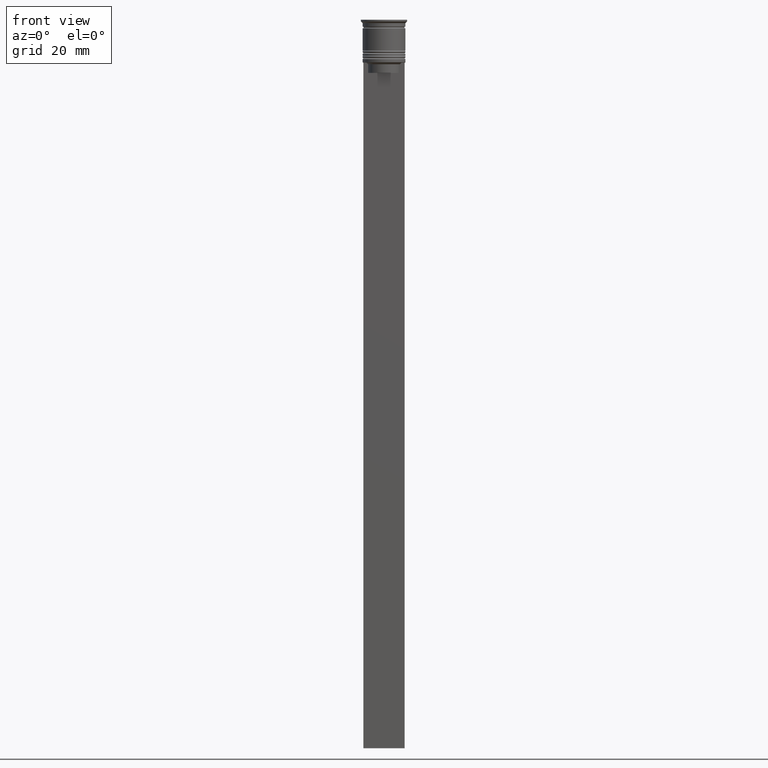
[diagram: clean part render]
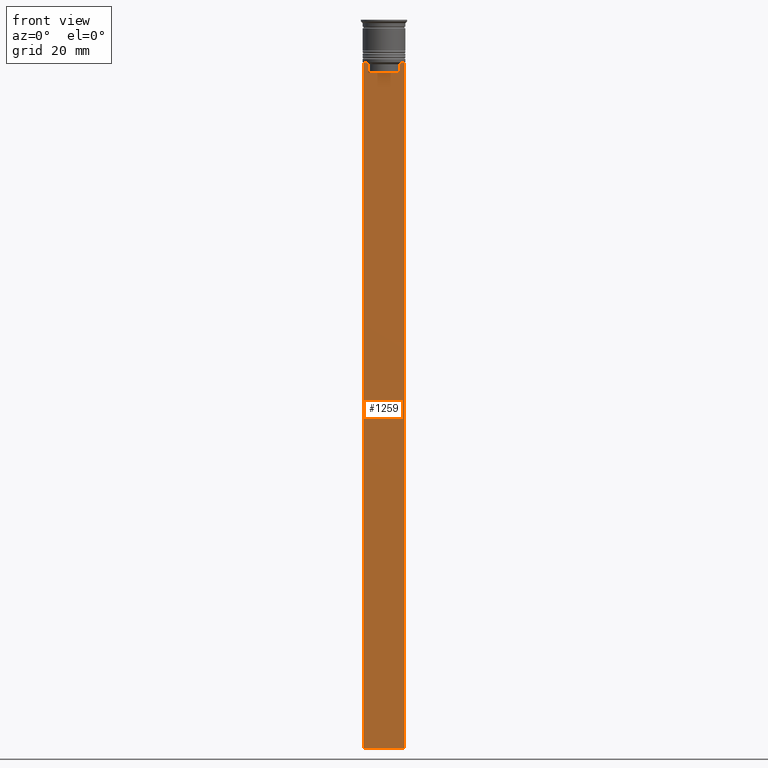
[diagram: same view with one face highlighted and labeled with its STEP entity id]
A machine part, front view. The second image highlights one B-rep face of the part: STEP entity #1259.
In plain terms, the highlighted planar face has unit normal (0, -1, -0).
Its self-contained STEP definition (entity closure, byte-faithful):
#4 = EDGE_CURVE ( 'NONE', #890, #1723, #197, .T. ) ;
#5 = CARTESIAN_POINT ( 'NONE',  ( 6.000000000000016875, -0.5000000000000017764, -0.4584054212077061097 ) ) ;
#49 = CARTESIAN_POINT ( 'NONE',  ( 4.790630799407577634, -0.5000000000000017764, -12.83338098686238915 ) ) ;
#87 = ORIENTED_EDGE ( 'NONE', *, *, #493, .F. ) ;
#94 = VECTOR ( 'NONE', #804, 1000.000000000000000 ) ;
#126 = LINE ( 'NONE', #863, #904 ) ;
#152 = PLANE ( 'NONE',  #953 ) ;
#197 = LINE ( 'NONE', #2187, #1772 ) ;
#201 = CARTESIAN_POINT ( 'NONE',  ( -4.623040125285526436, -0.5000000000000022204, -15.50000000000000000 ) ) ;
#205 = VERTEX_POINT ( 'NONE', #1544 ) ;
#208 = CARTESIAN_POINT ( 'NONE',  ( -4.958169823806760412, -0.5000000000000017764, -12.66670956677067927 ) ) ;
#282 = VERTEX_POINT ( 'NONE', #634 ) ;
#313 = ORIENTED_EDGE ( 'NONE', *, *, #390, .F. ) ;
#322 = CARTESIAN_POINT ( 'NONE',  ( 4.623040125285526436, -0.5000000000000017764, 0.000000000000000000 ) ) ;
#341 = DIRECTION ( 'NONE',  ( 0.000000000000000000, -1.000000000000000000, -0.000000000000000000 ) ) ;
#352 = DIRECTION ( 'NONE',  ( 0.000000000000000000, 0.000000000000000000, -1.000000000000000000 ) ) ;
#355 = EDGE_CURVE ( 'NONE', #890, #282, #1253, .T. ) ;
#366 = VECTOR ( 'NONE', #2288, 1000.000000000000000 ) ;
#376 = DIRECTION ( 'NONE',  ( 0.000000000000000000, 0.000000000000000000, -1.000000000000000000 ) ) ;
#384 = VECTOR ( 'NONE', #352, 1000.000000000000000 ) ;
#390 = EDGE_CURVE ( 'NONE', #784, #1046, #714, .T. ) ;
#406 = CARTESIAN_POINT ( 'NONE',  ( -4.623040125285526436, -0.5000000000000017764, -13.00000000000000178 ) ) ;
#486 = ORIENTED_EDGE ( 'NONE', *, *, #1339, .F. ) ;
#493 = EDGE_CURVE ( 'NONE', #1977, #205, #518, .T. ) ;
#518 = B_SPLINE_CURVE_WITH_KNOTS ( 'NONE', 3,
 ( #981, #49, #1484, #1325 ),
 .UNSPECIFIED., .F., .F.,
 ( 4, 4 ),
 ( 0.02203698174624552780, 0.02275222543365896383 ),
 .UNSPECIFIED. ) ;
#531 = CARTESIAN_POINT ( 'NONE',  ( -4.623040125285526436, -0.5000000000000017764, -13.00000000000000178 ) ) ;
#610 = LINE ( 'NONE', #1862, #94 ) ;
#621 = B_SPLINE_CURVE_WITH_KNOTS ( 'NONE', 3,
 ( #755, #208, #1165, #406 ),
 .UNSPECIFIED., .F., .F.,
 ( 4, 4 ),
 ( 0.008759809102772709091, 0.009468778395565353653 ),
 .UNSPECIFIED. ) ;
#634 = CARTESIAN_POINT ( 'NONE',  ( -5.125670687822231564, -0.5000000000000017764, -12.50000000000000000 ) ) ;
#694 = EDGE_LOOP ( 'NONE', ( #486, #1796, #1431, #1061, #2076, #975, #87, #1303, #313, #1229 ) ) ;
#714 = LINE ( 'NONE', #1636, #1216 ) ;
#735 = CARTESIAN_POINT ( 'NONE',  ( -5.999999999999983125, -0.5000000000000017764, -12.50000000000000000 ) ) ;
#738 = CARTESIAN_POINT ( 'NONE',  ( 6.000000000000016875, -0.5000000000000017764, -12.50000000000000000 ) ) ;
#755 = CARTESIAN_POINT ( 'NONE',  ( -5.125670687822231564, -0.5000000000000017764, -12.50000000000000000 ) ) ;
#784 = VERTEX_POINT ( 'NONE', #201 ) ;
#804 = DIRECTION ( 'NONE',  ( 1.000000000000000000, 0.000000000000000000, 0.000000000000000000 ) ) ;
#863 = CARTESIAN_POINT ( 'NONE',  ( 6.000000000000016875, -0.5000000000000017764, -212.5000000000000284 ) ) ;
#890 = VERTEX_POINT ( 'NONE', #735 ) ;
#904 = VECTOR ( 'NONE', #1575, 1000.000000000000000 ) ;
#953 = AXIS2_PLACEMENT_3D ( 'NONE', #1978, #341, #376 ) ;
#975 = ORIENTED_EDGE ( 'NONE', *, *, #2191, .F. ) ;
#981 = CARTESIAN_POINT ( 'NONE',  ( 4.623040125285526436, -0.5000000000000017764, -13.00000000000000178 ) ) ;
#1046 = VERTEX_POINT ( 'NONE', #2035 ) ;
#1051 = DIRECTION ( 'NONE',  ( -0.000000000000000000, -0.000000000000000000, 1.000000000000000000 ) ) ;
#1061 = ORIENTED_EDGE ( 'NONE', *, *, #2311, .F. ) ;
#1122 = DIRECTION ( 'NONE',  ( 1.000000000000000000, 0.000000000000000000, 0.000000000000000000 ) ) ;
#1165 = CARTESIAN_POINT ( 'NONE',  ( -4.790630915080664742, -0.5000000000000017764, -12.83338087185995491 ) ) ;
#1196 = CARTESIAN_POINT ( 'NONE',  ( -4.623040125285526436, -0.5000000000000017764, 0.000000000000000000 ) ) ;
#1216 = VECTOR ( 'NONE', #1265, 1000.000000000000000 ) ;
#1229 = ORIENTED_EDGE ( 'NONE', *, *, #1823, .F. ) ;
#1234 = EDGE_CURVE ( 'NONE', #1896, #1738, #1419, .T. ) ;
#1253 = LINE ( 'NONE', #738, #1402 ) ;
#1255 = VERTEX_POINT ( 'NONE', #531 ) ;
#1259 = ADVANCED_FACE ( 'NONE', ( #1602 ), #152, .T. ) ;
#1265 = DIRECTION ( 'NONE',  ( 1.000000000000000000, 0.000000000000000000, 0.000000000000000000 ) ) ;
#1298 = CARTESIAN_POINT ( 'NONE',  ( 4.623040125285526436, -0.5000000000000017764, -13.00000000000000178 ) ) ;
#1303 = ORIENTED_EDGE ( 'NONE', *, *, #1626, .F. ) ;
#1325 = CARTESIAN_POINT ( 'NONE',  ( 5.125670687822231564, -0.5000000000000017764, -12.50000000000000000 ) ) ;
#1339 = EDGE_CURVE ( 'NONE', #282, #1255, #621, .T. ) ;
#1402 = VECTOR ( 'NONE', #1122, 1000.000000000000000 ) ;
#1419 = LINE ( 'NONE', #5, #384 ) ;
#1431 = ORIENTED_EDGE ( 'NONE', *, *, #4, .T. ) ;
#1484 = CARTESIAN_POINT ( 'NONE',  ( 4.958169719475987947, -0.5000000000000017764, -12.66670967060858111 ) ) ;
#1544 = CARTESIAN_POINT ( 'NONE',  ( 5.125670687822231564, -0.5000000000000017764, -12.50000000000000000 ) ) ;
#1567 = LINE ( 'NONE', #1196, #366 ) ;
#1575 = DIRECTION ( 'NONE',  ( -1.000000000000000000, 0.000000000000000000, 0.000000000000000000 ) ) ;
#1584 = LINE ( 'NONE', #322, #1945 ) ;
#1602 = FACE_OUTER_BOUND ( 'NONE', #694, .T. ) ;
#1617 = DIRECTION ( 'NONE',  ( 0.000000000000000000, 0.000000000000000000, -1.000000000000000000 ) ) ;
#1626 = EDGE_CURVE ( 'NONE', #1046, #1977, #1584, .T. ) ;
#1636 = CARTESIAN_POINT ( 'NONE',  ( 0.000000000000000000, -0.5000000000000022204, -15.50000000000000000 ) ) ;
#1723 = VERTEX_POINT ( 'NONE', #1858 ) ;
#1738 = VERTEX_POINT ( 'NONE', #2256 ) ;
#1742 = CARTESIAN_POINT ( 'NONE',  ( 6.000000000000016875, -0.5000000000000017764, -12.50000000000000000 ) ) ;
#1772 = VECTOR ( 'NONE', #1617, 1000.000000000000000 ) ;
#1796 = ORIENTED_EDGE ( 'NONE', *, *, #355, .F. ) ;
#1823 = EDGE_CURVE ( 'NONE', #1255, #784, #1567, .T. ) ;
#1858 = CARTESIAN_POINT ( 'NONE',  ( -5.999999999999983125, -0.5000000000000017764, -212.5000000000000284 ) ) ;
#1862 = CARTESIAN_POINT ( 'NONE',  ( 6.000000000000016875, -0.5000000000000017764, -12.50000000000000000 ) ) ;
#1896 = VERTEX_POINT ( 'NONE', #1742 ) ;
#1945 = VECTOR ( 'NONE', #1051, 1000.000000000000000 ) ;
#1977 = VERTEX_POINT ( 'NONE', #1298 ) ;
#1978 = CARTESIAN_POINT ( 'NONE',  ( 6.000000000000016875, -0.5000000000000017764, -0.4584054212077061097 ) ) ;
#2035 = CARTESIAN_POINT ( 'NONE',  ( 4.623040125285526436, -0.5000000000000022204, -15.50000000000000000 ) ) ;
#2076 = ORIENTED_EDGE ( 'NONE', *, *, #1234, .F. ) ;
#2187 = CARTESIAN_POINT ( 'NONE',  ( -5.999999999999983125, -0.5000000000000017764, -0.4584054212077061097 ) ) ;
#2191 = EDGE_CURVE ( 'NONE', #205, #1896, #610, .T. ) ;
#2256 = CARTESIAN_POINT ( 'NONE',  ( 6.000000000000016875, -0.5000000000000017764, -212.5000000000000284 ) ) ;
#2288 = DIRECTION ( 'NONE',  ( 0.000000000000000000, 0.000000000000000000, -1.000000000000000000 ) ) ;
#2311 = EDGE_CURVE ( 'NONE', #1738, #1723, #126, .T. ) ;